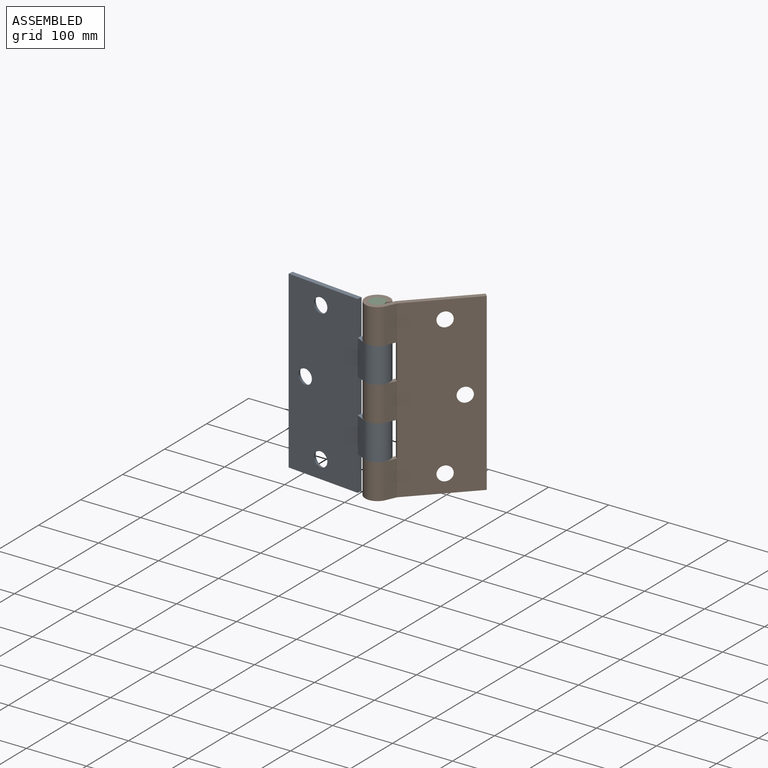
[diagram: assembled view]
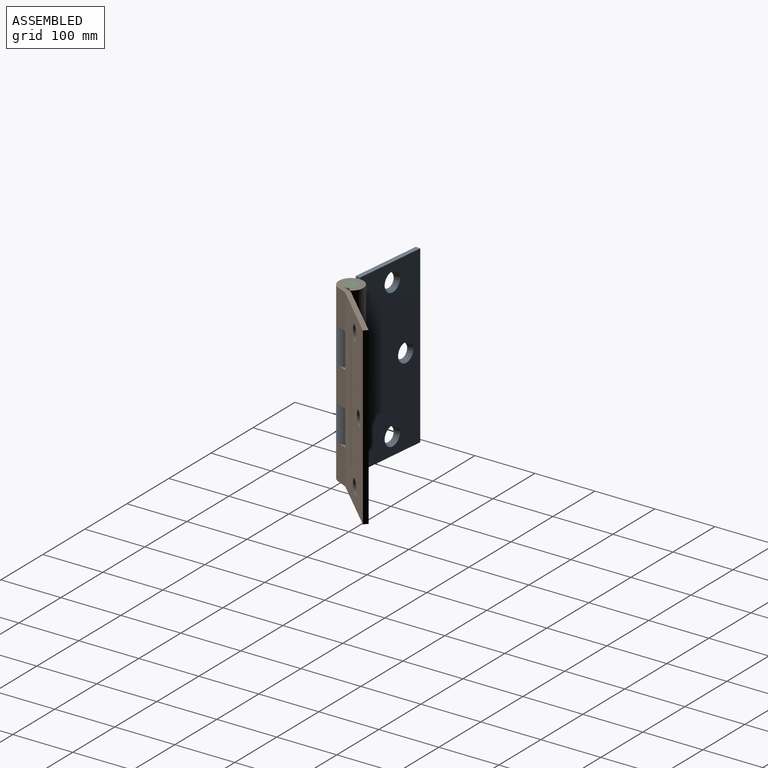
[diagram: assembled view, second angle]
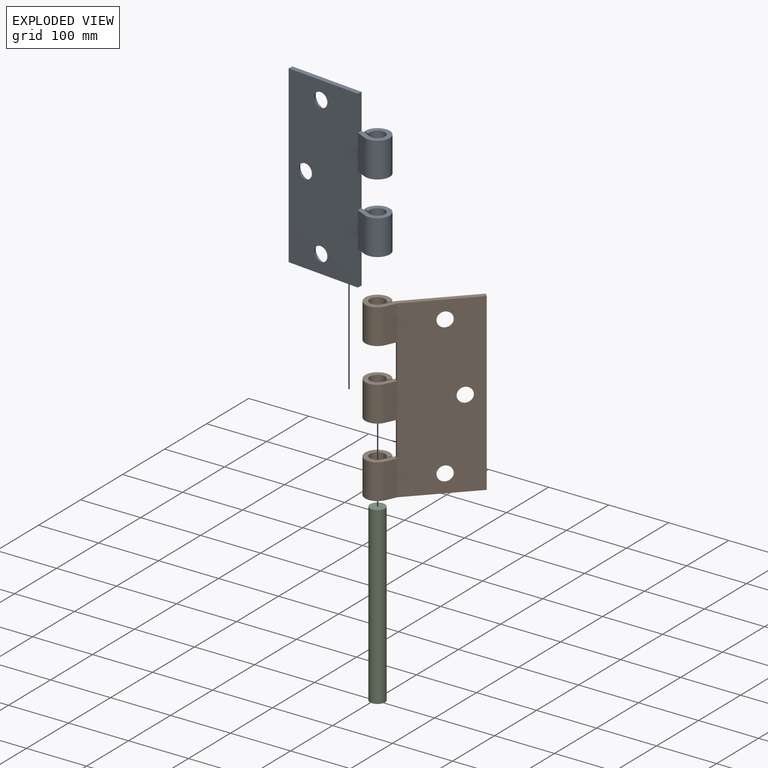
[diagram: exploded view]
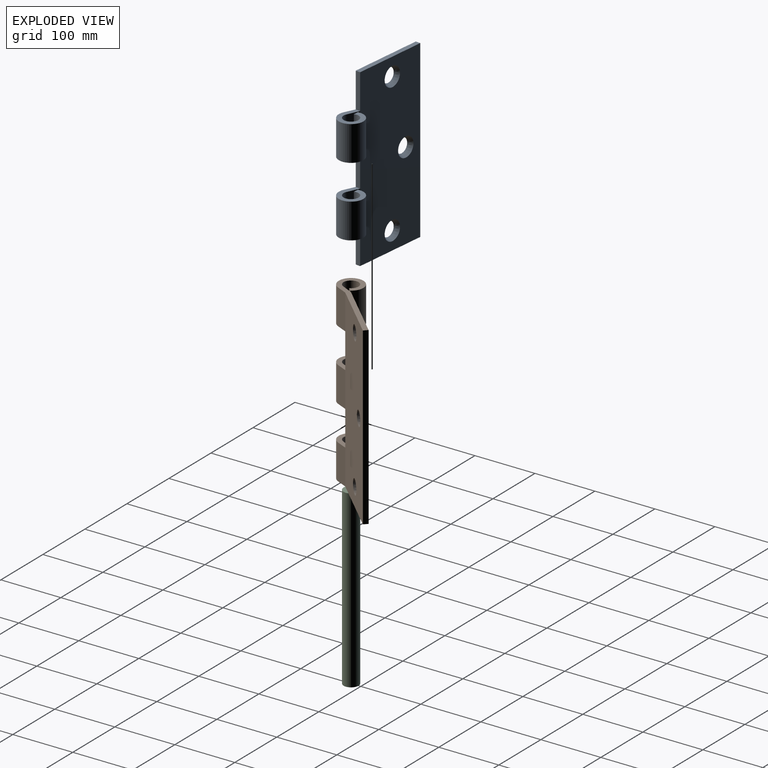
[diagram: exploded view, second angle]
ASSEMBLY  parts=3 mates=2
PART A: 25 faces, bbox 170x41x292 mm
  f0: plane 58.4x20.54mm, normal (0.32,0.95,0), area 1264.7mm2, adj f8,f12,f20,f22
  f1: plane 58.4x20.54mm, normal (0.32,0.95,0), area 1264.7mm2, adj f9,f12,f19,f24
  f2: plane 58.4x17.59mm, normal (-0.34,-0.94,0), area 1091mm2, adj f4,f14,f20,f22
  f3: plane 58.4x17.59mm, normal (-0.34,-0.94,0), area 1091mm2, adj f5,f14,f19,f24
  f4: cylinder r=20.5mm len=58.4mm, axis (0,0,-1), area 6348.4mm2, adj f2,f6,f20,f22
  f5: cylinder r=20.5mm len=58.4mm, axis (0,0,-1), area 6348.4mm2, adj f3,f7,f19,f24
  f6: plane 58.4x8.42mm, normal (0,-1,0), area 492mm2, adj f4,f8,f20,f22
  f7: plane 58.4x8.42mm, normal (0,-1,0), area 492mm2, adj f5,f9,f19,f24
  f8: cylinder r=12.5mm len=58.4mm, axis (0,0,-1), area 3975.6mm2, adj f0,f6,f20,f22
  f9: cylinder r=12.5mm len=58.4mm, axis (0,0,-1), area 3975.6mm2, adj f1,f7,f19,f24
  f10: plane 125x8mm, normal (0,0,1), area 1000mm2, adj f12,f13,f14,f21
  f11: plane 125x8mm, normal (0,0,-1), area 1000mm2, adj f12,f13,f14,f23
  f12: plane 292x125mm, normal (0,1,0), area 34087.3mm2, adj f0,f1,f10,f11,f13,f15,f16,f17
  f13: plane 292x8mm, normal (-1,0,0), area 2336mm2, adj f10,f11,f12,f14
  f14: plane 292x125mm, normal (0,-1,0), area 35142.8mm2, adj f2,f3,f10,f11,f13,f15,f16,f17
  f15: cone r=12mm half-angle=26.6deg, axis (0,1,0), area 786.8mm2, adj f12,f14
  f16: cone r=12mm half-angle=26.6deg, axis (0,1,0), area 786.8mm2, adj f12,f14
  f17: cone r=12mm half-angle=26.6deg, axis (0,1,0), area 786.8mm2, adj f12,f14
  f18: plane 58.4x8mm, normal (1,0,0), area 467.2mm2, adj f12,f14,f19,f20
  f19: plane 45x41mm, normal (0,0,1), area 864mm2, adj f1,f3,f5,f7,f9,f18
  f20: plane 45x41mm, normal (0,0,-1), area 864mm2, adj f0,f2,f4,f6,f8,f18
  f21: plane 58.4x8mm, normal (1,0,0), area 467.2mm2, adj f10,f12,f14,f22
  f22: plane 45x41mm, normal (0,0,1), area 864mm2, adj f0,f2,f4,f6,f8,f21
  f23: plane 58.4x8mm, normal (1,0,0), area 467.2mm2, adj f11,f12,f14,f24
  f24: plane 45x41mm, normal (0,0,-1), area 864mm2, adj f1,f3,f5,f7,f9,f23
PART B: 29 faces, bbox 170x41x292 mm
  f0: plane 58.4x20.54mm, normal (-0.32,0.95,0), area 1264.7mm2, adj f8,f11,f25,f27
  f1: plane 58.4x20.54mm, normal (-0.32,0.95,0), area 1264.7mm2, adj f9,f11,f18,f24
  f2: plane 58.4x17.59mm, normal (0.34,-0.94,0), area 1091mm2, adj f4,f13,f25,f27
  f3: plane 58.4x17.59mm, normal (0.34,-0.94,0), area 1091mm2, adj f5,f13,f18,f24
  f4: cylinder r=20.5mm len=58.4mm, axis (0,0,-1), area 6348.4mm2, adj f2,f6,f25,f27
  f5: cylinder r=20.5mm len=58.4mm, axis (0,0,-1), area 6348.4mm2, adj f3,f7,f18,f24
  f6: plane 58.4x8.42mm, normal (0,-1,0), area 492mm2, adj f4,f8,f25,f27
  f7: plane 58.4x8.42mm, normal (0,-1,0), area 492mm2, adj f5,f9,f18,f24
  f8: cylinder r=12.5mm len=58.4mm, axis (0,0,-1), area 3975.6mm2, adj f0,f6,f25,f27
  f9: cylinder r=12.5mm len=58.4mm, axis (0,0,-1), area 3975.6mm2, adj f1,f7,f18,f24
  f10: plane 58.4x20.54mm, normal (-0.32,0.95,0), area 1264.7mm2, adj f11,f17,f19,f28
  f11: plane 292x125mm, normal (0,1,0), area 34087.3mm2, adj f0,f1,f10,f12,f18,f19,f20,f21
  f12: plane 292x8mm, normal (1,0,0), area 2336mm2, adj f11,f13,f18,f19
  f13: plane 292x125mm, normal (0,-1,0), area 35142.8mm2, adj f2,f3,f12,f14,f18,f19,f20,f21
  f14: plane 58.4x17.59mm, normal (0.34,-0.94,0), area 1091mm2, adj f13,f15,f19,f28
  f15: cylinder r=20.5mm len=58.4mm, axis (0,0,-1), area 6348.4mm2, adj f14,f16,f19,f28
  f16: plane 58.4x8.42mm, normal (0,-1,0), area 492mm2, adj f15,f17,f19,f28
  f17: cylinder r=12.5mm len=58.4mm, axis (0,0,-1), area 3975.6mm2, adj f10,f16,f19,f28
  f18: plane 170x41mm, normal (0,0,1), area 1864mm2, adj f1,f3,f5,f7,f9,f11,f12,f13
  f19: plane 170x41mm, normal (0,0,-1), area 1864mm2, adj f10,f11,f12,f13,f14,f15,f16,f17
  f20: cone r=12mm half-angle=26.6deg, axis (0,1,0), area 786.8mm2, adj f11,f13
  f21: cone r=12mm half-angle=26.6deg, axis (0,1,0), area 786.8mm2, adj f11,f13
  f22: cone r=12mm half-angle=26.6deg, axis (0,1,0), area 786.8mm2, adj f11,f13
  f23: plane 58.4x8mm, normal (-1,0,0), area 467.2mm2, adj f11,f13,f24,f25
  f24: plane 45x41mm, normal (0,0,-1), area 864mm2, adj f1,f3,f5,f7,f9,f23
  f25: plane 45x41mm, normal (0,0,1), area 864mm2, adj f0,f2,f4,f6,f8,f23
  f26: plane 58.4x8mm, normal (-1,0,0), area 467.2mm2, adj f11,f13,f27,f28
  f27: plane 45x41mm, normal (0,0,-1), area 864mm2, adj f0,f2,f4,f6,f8,f26
  f28: plane 45x41mm, normal (0,0,1), area 864mm2, adj f10,f14,f15,f16,f17,f26
PART C: 3 faces, bbox 25x25x292 mm
  f0: cylinder r=12.5mm len=292mm, axis (0,0,-1), area 22933.6mm2, adj f1,f2
  f1: plane 25x25mm, normal (0,0,1), area 490.9mm2, adj f0
  f2: plane 25x25mm, normal (0,0,-1), area 490.9mm2, adj f0
PLACE A rot(axis=(0,0,-1),6deg) t=(-1513.95,-10.88,-3.71)mm
PLACE B rot(axis=(0,0,1),46.1deg) t=(-1676.47,-210.49,-3.71)mm
PLACE C t=(-1489.06,-8.49,-3.71)mm fixed
MATE revolute A.f4 <-> B.f4  axis (0,0,-1) through (-1489.06,-8.49,229.89)mm
MATE revolute B.f4 <-> C.f0  axis (0,0,-1) through (-1489.06,-8.49,288.29)mm
